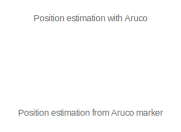
[diagram: root canvas - part 1/3, top left region]
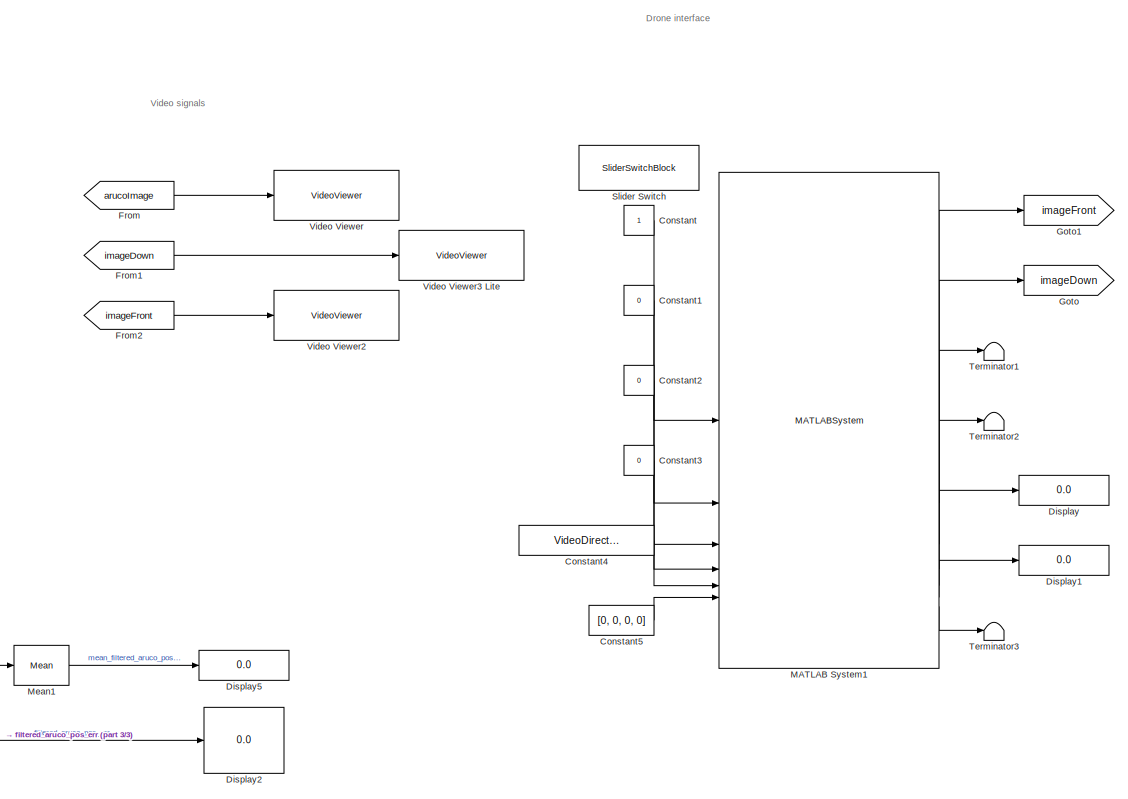
[diagram: root canvas - part 2/3, right side, full height]
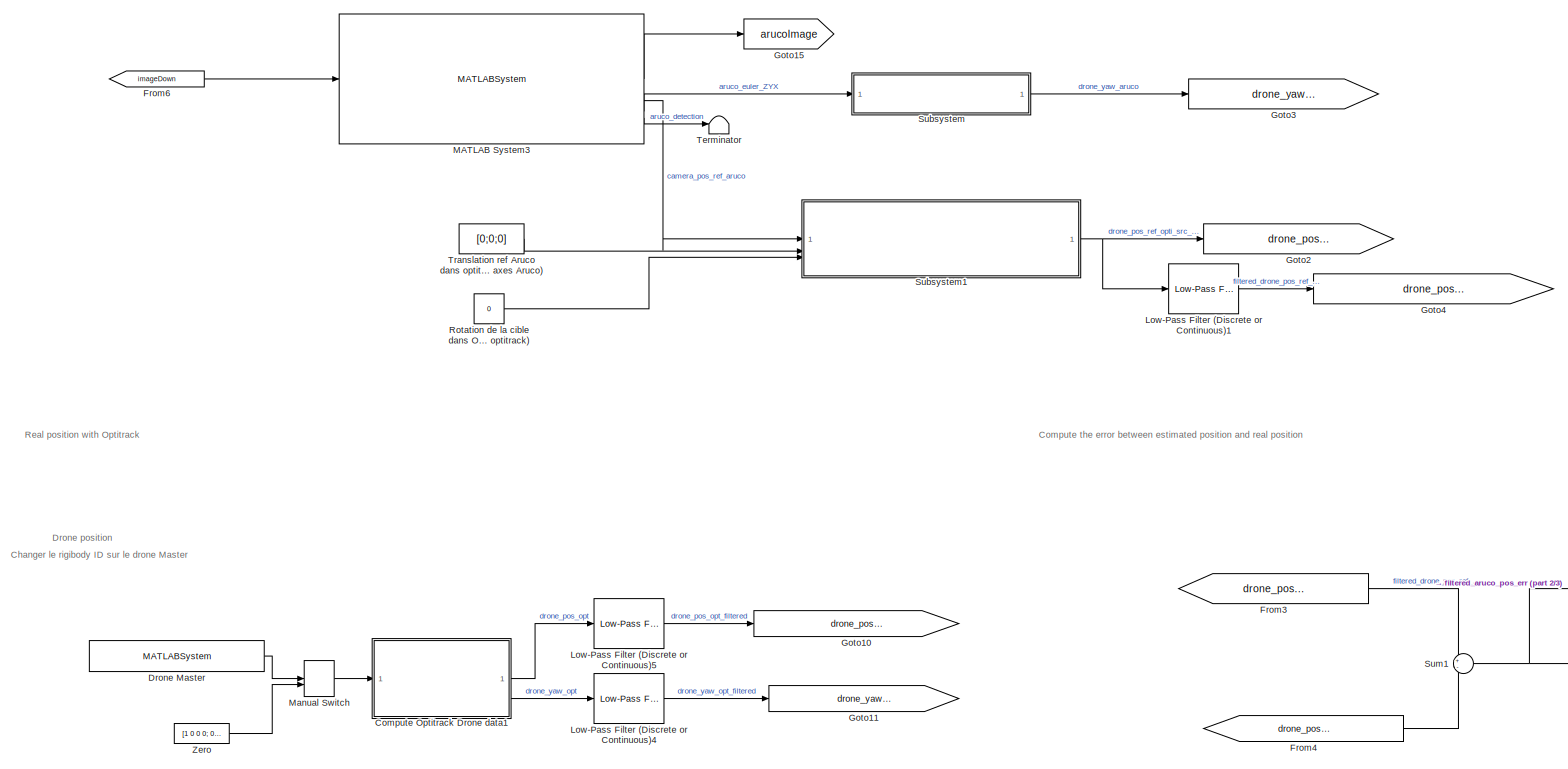
[diagram: root canvas - part 3/3, left side, full height]
MODEL slx_785f7b4c3cd8
KIND model
CONFIG AbsTol = auto
CONFIG EnableMultiTasking = off
CONFIG FixedStep = 0.1
CONFIG MaxStep = auto
CONFIG MinStep = auto
CONFIG RelTol = 1e-3
CONFIG SampleTimeConstraint = Unconstrained
CONFIG SolverName = FixedStepAuto
CONFIG StartTime = 0.0
CONFIG StopTime = inf
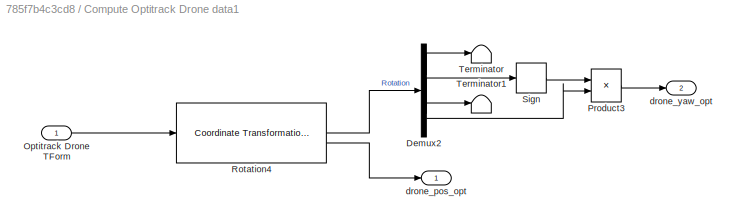
BLOCK [SubSystem] Compute Optitrack Drone data1
BLOCK [Demux] Compute Optitrack Drone data1/Demux2
BLOCK [Inport] Compute Optitrack Drone data1/Optitrack Drone TForm
BLOCK [Product] Compute Optitrack Drone data1/Product3
BLOCK [Reference] Compute Optitrack Drone data1/Rotation4  REF=robotcorelib/Coordinate Transformation Conversion
  LibrarySourceBlock = uavutilslib/Coordinate Transformation Conversion
  SourceBlock = robotcorelib/Coordinate Transformation Conversion
  SourceType = robotics.slcore.internal.block.CoordinateTransformationConversion
BLOCK [Signum] Compute Optitrack Drone data1/Sign
BLOCK [Terminator] Compute Optitrack Drone data1/Terminator
BLOCK [Terminator] Compute Optitrack Drone data1/Terminator1
BLOCK [Outport] Compute Optitrack Drone data1/drone_pos_opt
BLOCK [Outport] Compute Optitrack Drone data1/drone_yaw_opt
  Port = 2
BLOCK [Constant] Constant
BLOCK [Constant] Constant1
  Value = 0
BLOCK [Constant] Constant2
  Value = 0
BLOCK [Constant] Constant3
  Value = 0
BLOCK [Constant] Constant4
  Value = VideoDirection.Downward
BLOCK [Constant] Constant5
  Value = [0, 0, 0, 0]
BLOCK [Display] Display
  Decimation = 1
BLOCK [Display] Display1
  Decimation = 1
BLOCK [Display] Display2
  Decimation = 1
BLOCK [Display] Display5
  Decimation = 1
BLOCK [MATLABSystem] Drone Master
  ClientIP = 10.147.125.13
  HostIP = 10.147.125.15
  MaskDisplay = disp('OptilinkSystem');\nport_label('output',1,'Drones data');\nport_label('output',2,'Connected');
  MaskType = OptilinkSystem
  RigidbodyID = 4
  SimulateUsing = Interpreted execution
  System = OptilinkSystem
BLOCK [From] From
  GotoTag = arucoImage
BLOCK [From] From1
  GotoTag = imageDown
BLOCK [From] From2
  GotoTag = imageFront
BLOCK [From] From3
  GotoTag = drone_pos_opt_from_aruco
BLOCK [From] From4
  GotoTag = drone_pos_opt_filtered
BLOCK [From] From6
  GotoTag = imageDown
BLOCK [Goto] Goto
  GotoTag = imageDown
BLOCK [Goto] Goto1
  GotoTag = imageFront
BLOCK [Goto] Goto10
  GotoTag = drone_pos_opt_filtered
BLOCK [Goto] Goto11
  GotoTag = drone_yaw_opt_filtered
BLOCK [Goto] Goto15
  GotoTag = arucoImage
BLOCK [Goto] Goto2
  GotoTag = drone_pos_opt_from_aruco
BLOCK [Goto] Goto3
  GotoTag = drone_yaw_ref_aruco
BLOCK [Goto] Goto4
  GotoTag = drone_pos_opt_from_aruco_filtered
BLOCK [Reference] Low-Pass Filter (Discrete or Continuous)1  REF=eeGeneralControl/Low-Pass Filter
(Discrete or Continuous)
  LibrarySourceBlock = ee_sl_lib/General Control/Low-Pass Filter\n(Discrete or Continuous)
  SourceBlock = eeGeneralControl/Low-Pass Filter\n(Discrete or Continuous)
  SourceType = Low-Pass Filter (Discrete or Continuous)
BLOCK [Reference] Low-Pass Filter (Discrete or Continuous)4  REF=eeGeneralControl/Low-Pass Filter
(Discrete or Continuous)
  LibrarySourceBlock = ee_sl_lib/General Control/Low-Pass Filter\n(Discrete or Continuous)
  SourceBlock = eeGeneralControl/Low-Pass Filter\n(Discrete or Continuous)
  SourceType = Low-Pass Filter (Discrete or Continuous)
BLOCK [Reference] Low-Pass Filter (Discrete or Continuous)5  REF=eeGeneralControl/Low-Pass Filter
(Discrete or Continuous)
  LibrarySourceBlock = ee_sl_lib/General Control/Low-Pass Filter\n(Discrete or Continuous)
  SourceBlock = eeGeneralControl/Low-Pass Filter\n(Discrete or Continuous)
  SourceType = Low-Pass Filter (Discrete or Continuous)
BLOCK [MATLABSystem] MATLAB System1
  MaskDisplay = disp('Tello_drone_control');\nport_label('input',1,'enableVideo');\nport_label('input',2,'tkoff');\nport_label('input',3,'landing');\nport_label('input',4,'enableRC');\nport_label('input',5,'cmdVideoDirection');\nport_label('input',6,'rcspeeds');\nport_label('output',1,'imageFront');\nport_label('output',2,'imageDown');\nport_label('output',3,'Eulerangles');\nport_label('output',4,'speedXYZ');\nport_label('o...<+117ch>
  MaskType = Tello_drone_control
  SimulateUsing = Interpreted execution
  System = Tello_drone_control
  droneIP = 127.0.0.1
BLOCK [MATLABSystem] MATLAB System3
  MaskDisplay = disp('ArucoMarkerDetection');\nport_label('input',1,'I');\nport_label('output',1,'output_image');\nport_label('output',2,'camera_pos_ref_aruco');\nport_label('output',3,'euler_angles');\nport_label('output',4,'detection');
  MaskType = ArucoMarkerDetection
  SimulateUsing = Interpreted execution
  System = ArucoMarkerDetection
  focalLength = [222.5, 224]
  imageSize = [240,320]
  markerFamily = DICT_4X4_250
  markerSizeInMM = 150
  maxMarkers = 1
  principalPoint = [156 ,116]
BLOCK [ManualSwitch] Manual Switch
BLOCK [Reference] Mean1  REF=dspstat3/Mean
  SourceBlock = dspstat3/Mean
  SourceType = Mean
  UserDataPersistent = on
BLOCK [Constant] Rotation de la cible dans Optitrack (Axe Y optitrack)
  Value = 0
BLOCK [SliderSwitchBlock] Slider Switch
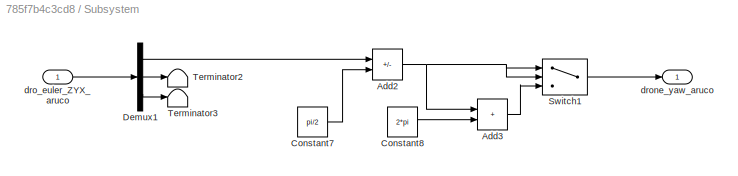
BLOCK [SubSystem] Subsystem
BLOCK [Sum] Subsystem/Add2
  IconShape = rectangular
  Inputs = +-
BLOCK [Sum] Subsystem/Add3
  IconShape = rectangular
BLOCK [Constant] Subsystem/Constant7
  Value = pi/2
BLOCK [Constant] Subsystem/Constant8
  Value = 2*pi
BLOCK [Demux] Subsystem/Demux1
  Outputs = 3
BLOCK [Switch] Subsystem/Switch1
  Criteria = u2 > Threshold
  InputSameDT = off
  SaturateOnIntegerOverflow = off
  Threshold = -pi
BLOCK [Terminator] Subsystem/Terminator2
BLOCK [Terminator] Subsystem/Terminator3
BLOCK [Inport] Subsystem/dro_euler_ZYX_aruco
BLOCK [Outport] Subsystem/drone_yaw_aruco
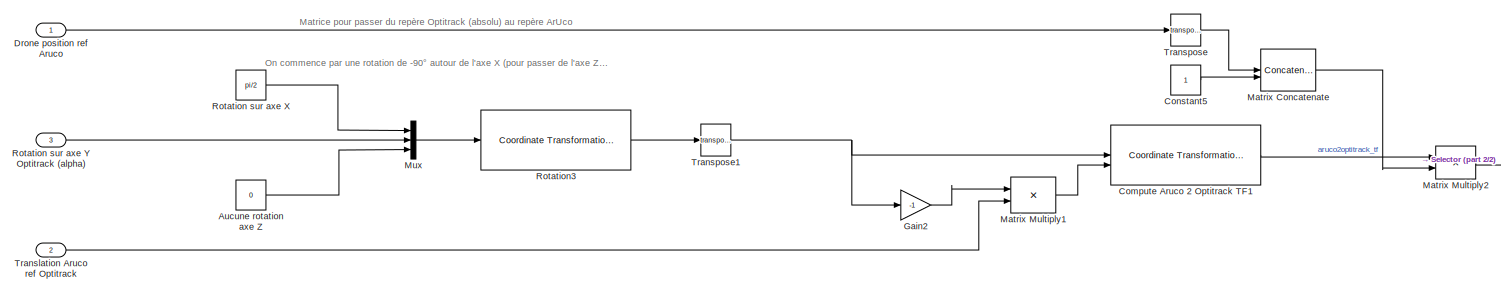
[diagram: Subsystem1 - part 1/2, most of the canvas]
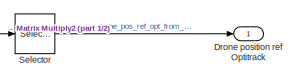
[diagram: Subsystem1 - part 2/2, middle right region]
BLOCK [SubSystem] Subsystem1
BLOCK [Constant] Subsystem1/Aucune rotation axe Z
  Value = 0
BLOCK [Reference] Subsystem1/Compute Aruco 2 Optitrack TF1  REF=robotcorelib/Coordinate Transformation Conversion
  LibrarySourceBlock = uavutilslib/Coordinate Transformation Conversion
  SourceBlock = robotcorelib/Coordinate Transformation Conversion
  SourceType = robotics.slcore.internal.block.CoordinateTransformationConversion
BLOCK [Constant] Subsystem1/Constant5
BLOCK [Inport] Subsystem1/Drone position ref Aruco
BLOCK [Outport] Subsystem1/Drone position ref Optitrack
BLOCK [Gain] Subsystem1/Gain2
  Gain = -1
BLOCK [Concatenate] Subsystem1/Matrix Concatenate
  ConcatenateDimension = 2
BLOCK [Product] Subsystem1/Matrix Multiply1
  Multiplication = Matrix(*)
BLOCK [Product] Subsystem1/Matrix Multiply2
  Multiplication = Matrix(*)
BLOCK [Mux] Subsystem1/Mux
  DisplayOption = bar
  Inputs = 3
BLOCK [Constant] Subsystem1/Rotation sur axe X
  Value = pi/2
BLOCK [Inport] Subsystem1/Rotation sur axe Y Optitrack (alpha)
  Port = 3
BLOCK [Reference] Subsystem1/Rotation3  REF=robotcorelib/Coordinate Transformation Conversion
  LibrarySourceBlock = uavutilslib/Coordinate Transformation Conversion
  SourceBlock = robotcorelib/Coordinate Transformation Conversion
  SourceType = robotics.slcore.internal.block.CoordinateTransformationConversion
BLOCK [Selector] Subsystem1/Selector
  IndexOptions = Index vector (dialog)
  Indices = [1 2 3]
  InputPortWidth = 4
  OutputSizes = 1
BLOCK [Inport] Subsystem1/Translation Aruco ref Optitrack
  Port = 2
BLOCK [Math] Subsystem1/Transpose
  Operator = transpose
BLOCK [Math] Subsystem1/Transpose1
  Operator = transpose
BLOCK [Sum] Sum1
  Inputs = +-
BLOCK [Terminator] Terminator
BLOCK [Terminator] Terminator1
BLOCK [Terminator] Terminator2
BLOCK [Terminator] Terminator3
BLOCK [Constant] Translation ref Aruco dans optitrack (dans les axes Aruco) 
  Value = [0;0;0]
BLOCK [VideoViewer] Video Viewer
  FigPos = [754.333333333333 951.333333333333 749.333333333333 848.666666666667]
  ScopeSpecificationString = vipscopes.VideoViewerScopeCfg('CurrentConfiguration', extmgr.ConfigurationSet(extmgr.Configuration('Core','General UI',true),extmgr.Configuration('Core','Source UI',true),extmgr.Configuration('Sources','WiredSimulink',true),extmgr.Configuration('Visuals','Video',true),extmgr.Configuration('Tools','Image Navigation Tools',true,'FitToView',true,'Magnification',4),extmgr.Configuration('Tools','Image ...<+162ch>
  colormapValue = gray(256)
BLOCK [VideoViewer] Video Viewer2
  FigPos = [974.333333333333 890 418 304]
  ScopeSpecificationString = vipscopes.VideoViewerScopeCfg('CurrentConfiguration', extmgr.ConfigurationSet(extmgr.Configuration('Core','General UI',true),extmgr.Configuration('Core','Source UI',true),extmgr.Configuration('Sources','WiredSimulink',true),extmgr.Configuration('Visuals','Video',true),extmgr.Configuration('Tools','Image Navigation Tools',true),extmgr.Configuration('Tools','Image Tool',true),extmgr.Configuration('T...<+101ch>
BLOCK [VideoViewer] Video Viewer3 Lite
  FigPos = [1055.66666666667 642.666666666667 418 304]
  ScopeSpecificationString = vipscopes.VideoViewerScopeCfg('CurrentConfiguration', extmgr.ConfigurationSet(extmgr.Configuration('Core','General UI',true),extmgr.Configuration('Core','Source UI',true),extmgr.Configuration('Sources','WiredSimulink',true),extmgr.Configuration('Visuals','Video',true),extmgr.Configuration('Tools','Image Navigation Tools',true),extmgr.Configuration('Tools','Image Tool',true),extmgr.Configuration('T...<+88ch>
BLOCK [Constant] Zero
  OutDataTypeStr = Inherit: Inherit via back propagation
  Value = [1 0 0 0; 0 1 0 0; 0 0 1 0; 0 0 0 1]
ANNOTATION (root): Video signals
ANNOTATION (root): Compute the error between estimated position and real position
ANNOTATION (root): Drone interface
ANNOTATION (root): Position estimation with Aruco
ANNOTATION (root): Real position with Optitrack
ANNOTATION (root): Changer le rigibody ID sur le drone Master
ANNOTATION (root): Drone position
ANNOTATION (root): Position estimation from Aruco marker
ANNOTATION Subsystem1: Matrice pour passer du repère Optitrack (absolu) au repère ArUco
ANNOTATION Subsystem1: On commence par une rotation de -90° autour de l'axe X (pour passer de l'axe Z vers l'axe Y)
LINE Compute Optitrack Drone data1/Demux2:1 -> Compute Optitrack Drone data1/Terminator:1
LINE Compute Optitrack Drone data1/Demux2:2 -> Compute Optitrack Drone data1/Sign:1
LINE Compute Optitrack Drone data1/Demux2:3 -> Compute Optitrack Drone data1/Terminator1:1
LINE Compute Optitrack Drone data1/Demux2:4 -> Compute Optitrack Drone data1/Product3:2
LINE Compute Optitrack Drone data1/Optitrack Drone TForm:1 -> Compute Optitrack Drone data1/Rotation4:1
LINE Compute Optitrack Drone data1/Product3:1 -> Compute Optitrack Drone data1/drone_yaw_opt:1
LINE Compute Optitrack Drone data1/Rotation4:1 -> Compute Optitrack Drone data1/Demux2:1
LINE Compute Optitrack Drone data1/Rotation4:2 -> Compute Optitrack Drone data1/drone_pos_opt:1
LINE Compute Optitrack Drone data1/Sign:1 -> Compute Optitrack Drone data1/Product3:1
LINE Compute Optitrack Drone data1:1 -> Low-Pass Filter (Discrete or Continuous)5:1
LINE Compute Optitrack Drone data1:2 -> Low-Pass Filter (Discrete or Continuous)4:1
LINE Constant1:1 -> MATLAB System1:2
LINE Constant2:1 -> MATLAB System1:3
LINE Constant3:1 -> MATLAB System1:4
LINE Constant4:1 -> MATLAB System1:5
LINE Constant5:1 -> MATLAB System1:6
LINE Constant:1 -> MATLAB System1:1
LINE Drone Master:1 -> Manual Switch:1
LINE From1:1 -> Video Viewer3 Lite:1
LINE From2:1 -> Video Viewer2:1
LINE From3:1 -> Sum1:1
LINE From4:1 -> Sum1:2
LINE From6:1 -> MATLAB System3:1
LINE From:1 -> Video Viewer:1
LINE Low-Pass Filter (Discrete or Continuous)1:1 -> Goto4:1
LINE Low-Pass Filter (Discrete or Continuous)4:1 -> Goto11:1
LINE Low-Pass Filter (Discrete or Continuous)5:1 -> Goto10:1
LINE MATLAB System1:1 -> Goto1:1
LINE MATLAB System1:2 -> Goto:1
LINE MATLAB System1:3 -> Terminator1:1
LINE MATLAB System1:4 -> Terminator2:1
LINE MATLAB System1:5 -> Display:1
LINE MATLAB System1:6 -> Display1:1
LINE MATLAB System1:7 -> Terminator3:1
LINE MATLAB System3:1 -> Goto15:1
LINE MATLAB System3:2 -> Subsystem1:1
LINE MATLAB System3:3 -> Subsystem:1
LINE MATLAB System3:4 -> Terminator:1
LINE Manual Switch:1 -> Compute Optitrack Drone data1:1
LINE Mean1:1 -> Display5:1
LINE Rotation de la cible dans Optitrack (Axe Y optitrack):1 -> Subsystem1:3
NET Subsystem/Add2:1 -> Subsystem/Add3:1, Subsystem/Switch1:1, Subsystem/Switch1:2
LINE Subsystem/Add3:1 -> Subsystem/Switch1:3
LINE Subsystem/Constant7:1 -> Subsystem/Add2:2
LINE Subsystem/Constant8:1 -> Subsystem/Add3:2
LINE Subsystem/Demux1:1 -> Subsystem/Add2:1
LINE Subsystem/Demux1:2 -> Subsystem/Terminator2:1
LINE Subsystem/Demux1:3 -> Subsystem/Terminator3:1
LINE Subsystem/Switch1:1 -> Subsystem/drone_yaw_aruco:1
LINE Subsystem/dro_euler_ZYX_aruco:1 -> Subsystem/Demux1:1
LINE Subsystem1/Aucune rotation axe Z:1 -> Subsystem1/Mux:3
LINE Subsystem1/Compute Aruco 2 Optitrack TF1:1 -> Subsystem1/Matrix Multiply2:1
LINE Subsystem1/Constant5:1 -> Subsystem1/Matrix Concatenate:2
LINE Subsystem1/Drone position ref Aruco:1 -> Subsystem1/Transpose:1
LINE Subsystem1/Gain2:1 -> Subsystem1/Matrix Multiply1:1
LINE Subsystem1/Matrix Concatenate:1 -> Subsystem1/Matrix Multiply2:2
LINE Subsystem1/Matrix Multiply1:1 -> Subsystem1/Compute Aruco 2 Optitrack TF1:2
LINE Subsystem1/Matrix Multiply2:1 -> Subsystem1/Selector:1
LINE Subsystem1/Mux:1 -> Subsystem1/Rotation3:1
LINE Subsystem1/Rotation sur axe X:1 -> Subsystem1/Mux:1
LINE Subsystem1/Rotation sur axe Y Optitrack (alpha):1 -> Subsystem1/Mux:2
LINE Subsystem1/Rotation3:1 -> Subsystem1/Transpose1:1
LINE Subsystem1/Selector:1 -> Subsystem1/Drone position ref Optitrack:1
LINE Subsystem1/Translation Aruco ref Optitrack:1 -> Subsystem1/Matrix Multiply1:2
NET Subsystem1/Transpose1:1 -> Subsystem1/Compute Aruco 2 Optitrack TF1:1, Subsystem1/Gain2:1
LINE Subsystem1/Transpose:1 -> Subsystem1/Matrix Concatenate:1
NET Subsystem1:1 -> Goto2:1, Low-Pass Filter (Discrete or Continuous)1:1
LINE Subsystem:1 -> Goto3:1
NET Sum1:1 -> Display2:1, Mean1:1
LINE Translation ref Aruco dans optitrack (dans les axes Aruco) :1 -> Subsystem1:2
LINE Zero:1 -> Manual Switch:2
note: NET lines group one-source signal fan-out (src -> all destinations, sorted); 1:1 wires keep LINE
